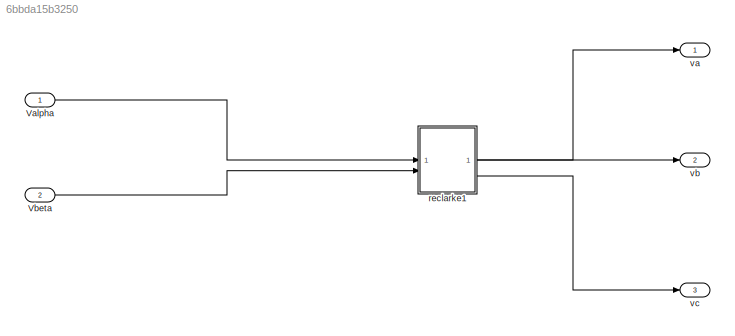
MODEL slx_6bbda15b3250
KIND model
CONFIG AbsTol = auto
CONFIG EnableMultiTasking = off
CONFIG FixedStep = auto
CONFIG MaxStep = auto
CONFIG MinStep = auto
CONFIG RelTol = 1e-3
CONFIG SampleTimeConstraint = Unconstrained
CONFIG SolverName = VariableStepAuto
CONFIG StartTime = 0.0
CONFIG StopTime = 10.0
BLOCK [Inport] Valpha
BLOCK [Inport] Vbeta
  Port = 2
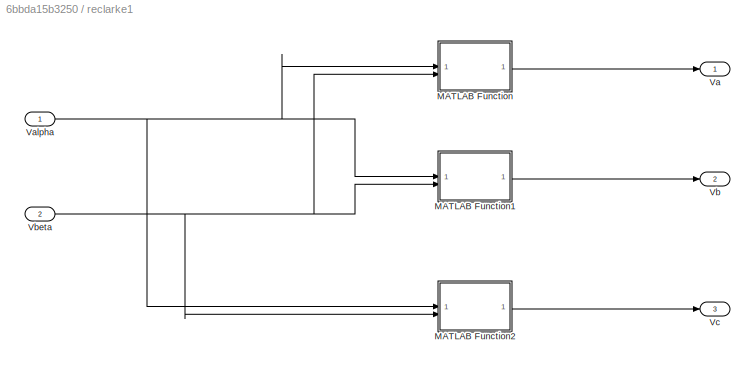
BLOCK [SubSystem] reclarke1
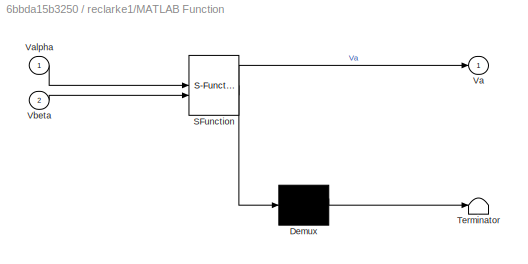
BLOCK [SubSystem] reclarke1/MATLAB Function
  ErrorFcn = Stateflow.Translate.translate
  LibrarySourceBlock = simulink/User-Defined\nFunctions/MATLAB Function
  PermitHierarchicalResolution = ExplicitOnly
  SFBlockType = MATLAB Function
  TreatAsAtomicUnit = on
BLOCK [Demux] reclarke1/MATLAB Function/ Demux 
  Outputs = 1
BLOCK [S-Function] reclarke1/MATLAB Function/ SFunction 
  EnableBusSupport = on
  FunctionName = sf_sfun
  PortCounts = [2 2]
  SFcnIsStateOwnerBlock = off
  SFunctionDeploymentMode = off
  Tag = Stateflow S-Function 4
BLOCK [Terminator] reclarke1/MATLAB Function/ Terminator 
BLOCK [Outport] reclarke1/MATLAB Function/Va
BLOCK [Inport] reclarke1/MATLAB Function/Valpha
BLOCK [Inport] reclarke1/MATLAB Function/Vbeta
  Port = 2
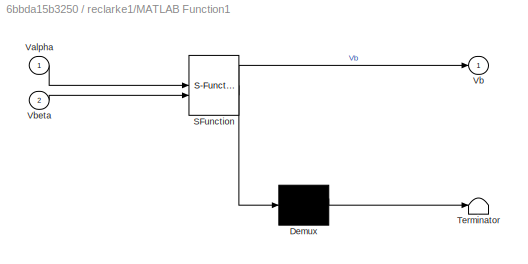
BLOCK [SubSystem] reclarke1/MATLAB Function1
  ErrorFcn = Stateflow.Translate.translate
  LibrarySourceBlock = simulink/User-Defined\nFunctions/MATLAB Function
  PermitHierarchicalResolution = ExplicitOnly
  SFBlockType = MATLAB Function
  TreatAsAtomicUnit = on
BLOCK [Demux] reclarke1/MATLAB Function1/ Demux 
  Outputs = 1
BLOCK [S-Function] reclarke1/MATLAB Function1/ SFunction 
  EnableBusSupport = on
  FunctionName = sf_sfun
  PortCounts = [2 2]
  SFcnIsStateOwnerBlock = off
  SFunctionDeploymentMode = off
  Tag = Stateflow S-Function 5
BLOCK [Terminator] reclarke1/MATLAB Function1/ Terminator 
BLOCK [Inport] reclarke1/MATLAB Function1/Valpha
BLOCK [Outport] reclarke1/MATLAB Function1/Vb
BLOCK [Inport] reclarke1/MATLAB Function1/Vbeta
  Port = 2
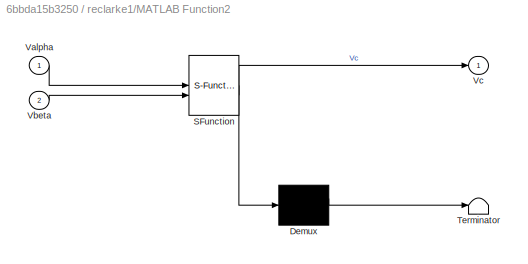
BLOCK [SubSystem] reclarke1/MATLAB Function2
  ErrorFcn = Stateflow.Translate.translate
  LibrarySourceBlock = simulink/User-Defined\nFunctions/MATLAB Function
  PermitHierarchicalResolution = ExplicitOnly
  SFBlockType = MATLAB Function
  TreatAsAtomicUnit = on
BLOCK [Demux] reclarke1/MATLAB Function2/ Demux 
  Outputs = 1
BLOCK [S-Function] reclarke1/MATLAB Function2/ SFunction 
  EnableBusSupport = on
  FunctionName = sf_sfun
  PortCounts = [2 2]
  SFcnIsStateOwnerBlock = off
  SFunctionDeploymentMode = off
  Tag = Stateflow S-Function 6
BLOCK [Terminator] reclarke1/MATLAB Function2/ Terminator 
BLOCK [Inport] reclarke1/MATLAB Function2/Valpha
BLOCK [Inport] reclarke1/MATLAB Function2/Vbeta
  Port = 2
BLOCK [Outport] reclarke1/MATLAB Function2/Vc
BLOCK [Outport] reclarke1/Va
BLOCK [Inport] reclarke1/Valpha
BLOCK [Outport] reclarke1/Vb
  Port = 2
BLOCK [Inport] reclarke1/Vbeta
  Port = 2
BLOCK [Outport] reclarke1/Vc
  Port = 3
BLOCK [Outport] va
BLOCK [Outport] vb
  Port = 2
BLOCK [Outport] vc
  Port = 3
LINE Valpha:1 -> reclarke1:1
LINE Vbeta:1 -> reclarke1:2
LINE reclarke1/MATLAB Function1:1 -> reclarke1/Vb:1
LINE reclarke1/MATLAB Function2:1 -> reclarke1/Vc:1
LINE reclarke1/MATLAB Function:1 -> reclarke1/Va:1
NET reclarke1/Valpha:1 -> reclarke1/MATLAB Function1:1, reclarke1/MATLAB Function2:1, reclarke1/MATLAB Function:1
NET reclarke1/Vbeta:1 -> reclarke1/MATLAB Function1:2, reclarke1/MATLAB Function2:2, reclarke1/MATLAB Function:2
LINE reclarke1:1 -> va:1
LINE reclarke1:2 -> vb:1
LINE reclarke1:3 -> vc:1
note: NET lines group one-source signal fan-out (src -> all destinations, sorted); 1:1 wires keep LINE
CHART reclarke1/MATLAB Function1 states=1 transitions=1
  STATE_LABEL 'eML_blk_kernel()'
  STATE_LABEL 'SCRIPT:\nfunction Vb = fcn(Valpha, Vbeta)\n\nVb = -Valpha * sind(30) + Vbeta * cosd(30);\n'
CHART reclarke1/MATLAB Function2 states=1 transitions=1
  STATE_LABEL 'eML_blk_kernel()'
  STATE_LABEL 'SCRIPT:\nfunction Vc = fcn(Valpha, Vbeta)\n\nVc = -Valpha * sind(30) - Vbeta * cosd(30);\n'
CHART reclarke1/MATLAB Function states=1 transitions=1
  STATE_LABEL 'eML_blk_kernel()'
  STATE_LABEL 'SCRIPT:\nfunction Va = fcn(Valpha, Vbeta)\n\nVa = Valpha;\n'
CHART  states=0 transitions=0
CHART  states=0 transitions=0
CHART  states=0 transitions=0
